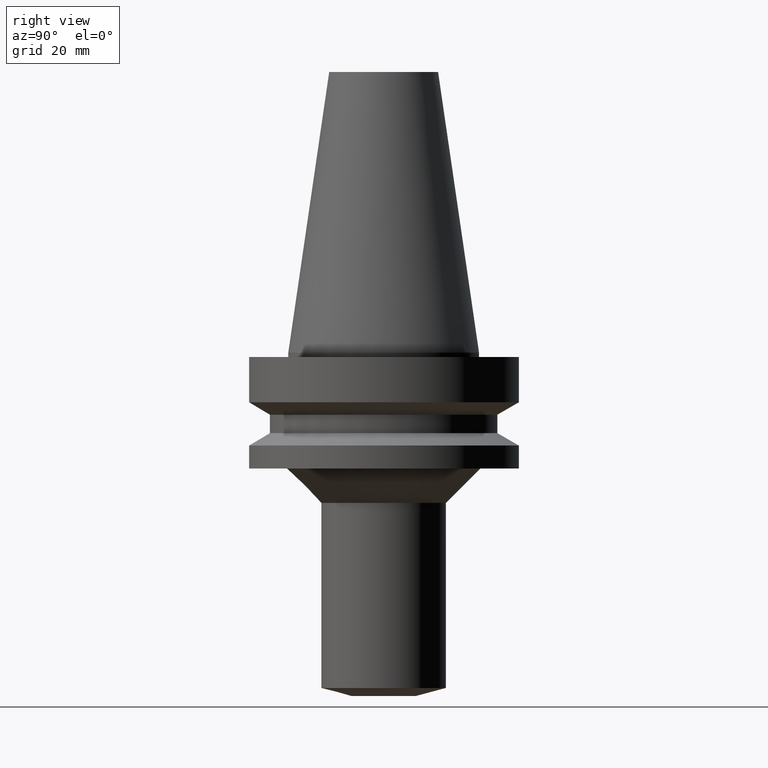
[diagram: clean part render]
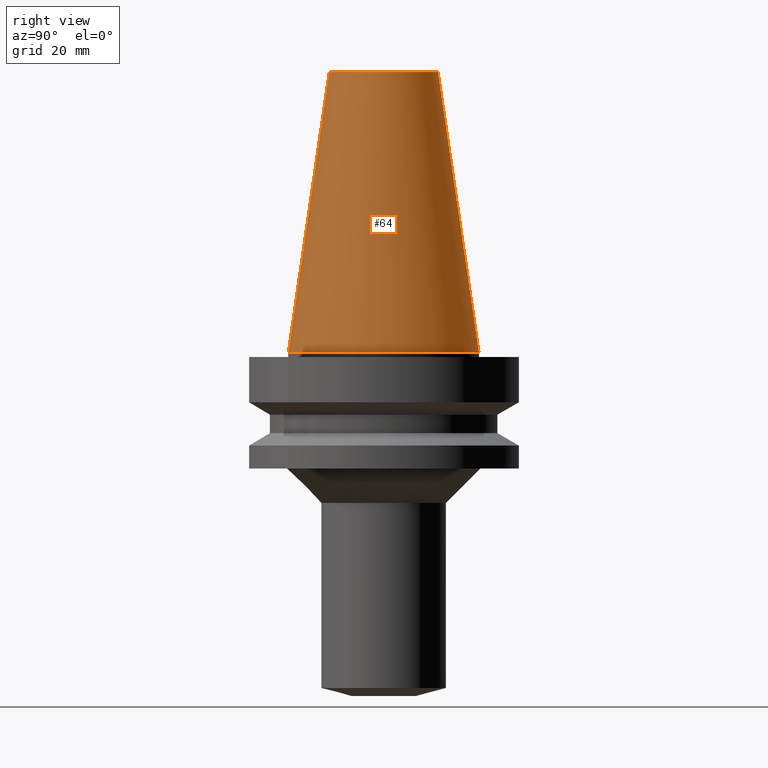
[diagram: same view with one face highlighted and labeled with its STEP entity id]
A machine part, right view. The second image highlights one B-rep face of the part: STEP entity #64.
In plain terms, the highlighted conical surface has half-angle 8.297 deg.
Its self-contained STEP definition (entity closure, byte-faithful):
#64=ADVANCED_FACE('Unnamed[1]',(#157,#158),#159,.T.);
#89=EDGE_CURVE('Unnamed[1]',#198,#198,#199,.T.);
#96=EDGE_CURVE('Unnamed[1]',#207,#207,#208,.T.);
#157=FACE_BOUND('',#278,.T.);
#158=FACE_BOUND('',#279,.T.);
#159=CONICAL_SURFACE('',#280,17.4562500000001,0.144812498238936);
#198=VERTEX_POINT('',#329);
#199=CIRCLE('',#330,12.6875000000001);
#207=VERTEX_POINT('',#340);
#208=CIRCLE('',#341,22.225);
#278=EDGE_LOOP('',(#413));
#279=EDGE_LOOP('',(#414));
#280=AXIS2_PLACEMENT_3D('',#415,#416,#417);
#329=CARTESIAN_POINT('',(-4.00459503321185E-015,12.6875000000002,65.4000000000001));
#330=AXIS2_PLACEMENT_3D('',#460,#461,#462);
#340=CARTESIAN_POINT('',(1.71319921032766E-029,22.2250000000001,-2.8153873565375E-013));
#341=AXIS2_PLACEMENT_3D('',#467,#468,#469);
#413=ORIENTED_EDGE('',*,*,#96,.F.);
#414=ORIENTED_EDGE('',*,*,#89,.T.);
#415=CARTESIAN_POINT('',(-2.00229751660592E-015,5.53964959055863E-014,32.6999999999999));
#416=DIRECTION('',(6.12323399573677E-017,-6.46048942079378E-016,-1.0));
#417=DIRECTION('',(3.47319357197332E-032,1.0,-6.46048942079378E-016));
#460=CARTESIAN_POINT('',(-4.00459503321185E-015,7.65222963115821E-014,65.4000000000001));
#461=DIRECTION('',(6.12323399573677E-017,-6.46048942079378E-016,-1.0));
#462=DIRECTION('',(3.47319357197332E-032,1.0,-6.46048942079378E-016));
#467=CARTESIAN_POINT('',(1.65331138531142E-029,3.42706954995905E-014,-2.70006239588838E-013));
#468=DIRECTION('',(6.12323399573677E-017,-6.46048942079378E-016,-1.0));
#469=DIRECTION('',(3.47319357197332E-032,1.0,-6.46048942079378E-016));